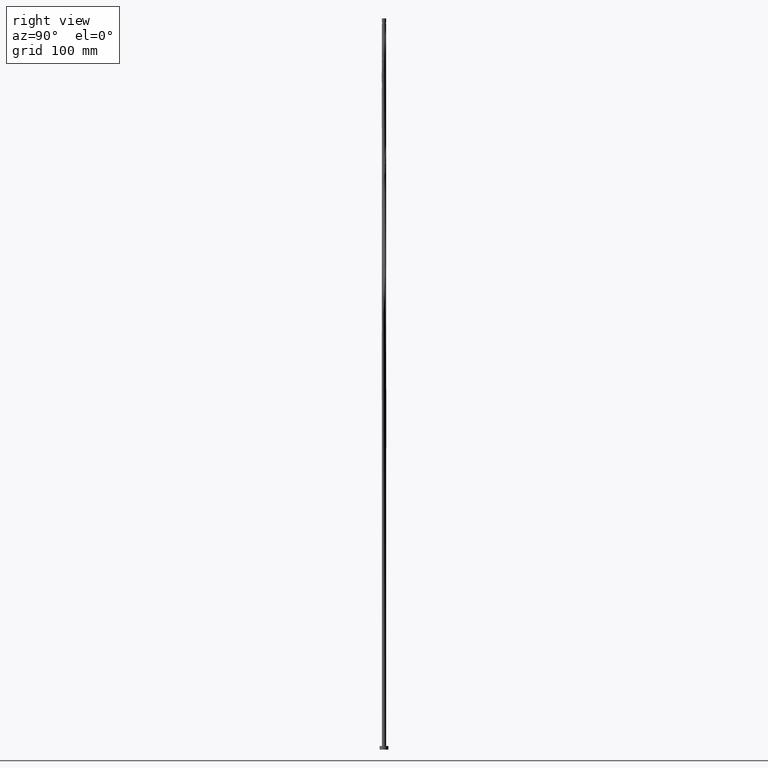
[diagram: clean part render]
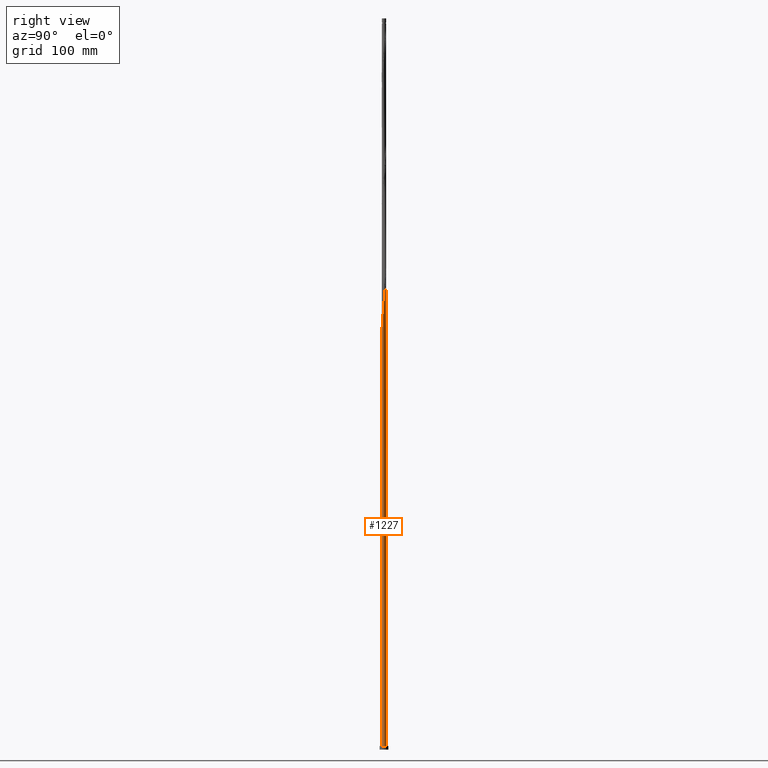
[diagram: same view with one face highlighted and labeled with its STEP entity id]
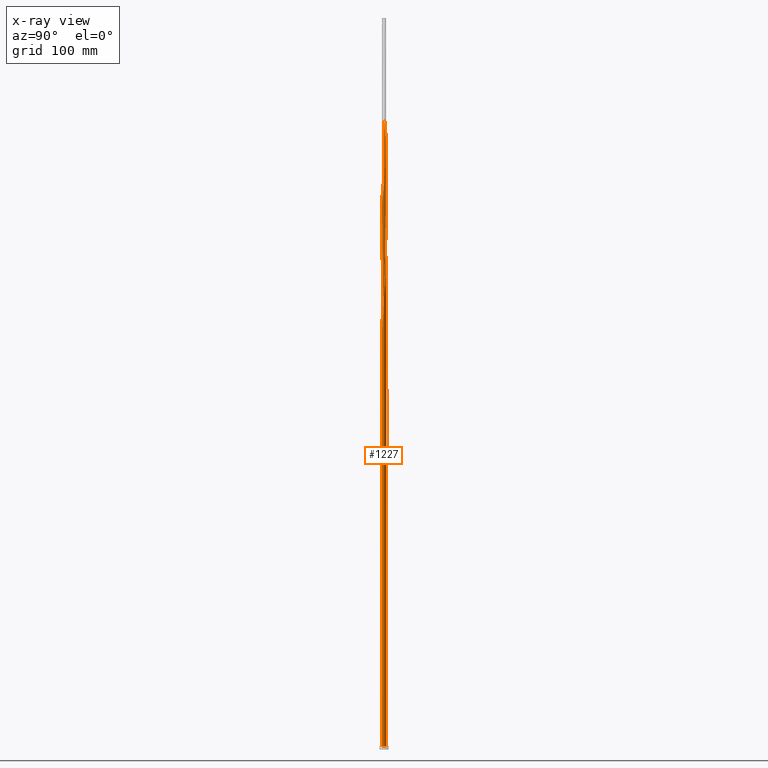
[diagram: x-ray of the same camera — body ghosted, the highlighted face saturated]
A machine part, right view. The second image highlights one B-rep face of the part: STEP entity #1227.
The next image is the same camera in x-ray: the body ghosted, the highlighted face saturated — about 0% of this face is hidden behind the body in this view.
In plain terms, the highlighted cylindrical surface (bore or boss wall) has radius 3 mm, axis along (-0, -0, -1).
Its self-contained STEP definition (entity closure, byte-faithful):
#12 = CARTESIAN_POINT ( 'NONE',  ( -3.000000000000007550, 0.1709212123392681859, 861.0584429387306500 ) ) ;
#28 = CARTESIAN_POINT ( 'NONE',  ( 2.729413328510887471, -1.245111594254566301, 767.8836096625230994 ) ) ;
#38 = CARTESIAN_POINT ( 'NONE',  ( -2.051489589161154203, 2.201621242057181682, 507.4669429958566980 ) ) ;
#39 = CARTESIAN_POINT ( 'NONE',  ( -1.476283534877595560, 2.611625341554438595, 834.5502763291899555 ) ) ;
#44 = CARTESIAN_POINT ( 'NONE',  ( -2.893015674258395453, -0.8283754803283612800, 536.6336096625232130 ) ) ;
#51 = CARTESIAN_POINT ( 'NONE',  ( 2.810413524882391378, 1.049559821619597155, 788.7169429958565843 ) ) ;
#56 = CARTESIAN_POINT ( 'NONE',  ( -2.986984325741610213, -0.3656094441996043387, 532.4669429958565843 ) ) ;
#82 = CARTESIAN_POINT ( 'NONE',  ( -0.8028078904657800496, 2.890588087397767403, 505.3836096625232699 ) ) ;
#92 = CARTESIAN_POINT ( 'NONE',  ( -2.027606598413804306, 2.211065689225176545, 517.8836096625233267 ) ) ;
#99 = CARTESIAN_POINT ( 'NONE',  ( -1.853591954770430927, 2.370641789289201107, 515.8002763291899555 ) ) ;
#103 = EDGE_CURVE ( 'NONE', #1804, #783, #2168, .T. ) ;
#105 = AXIS2_PLACEMENT_3D ( 'NONE', #2139, #532, #1901 ) ;
#106 = CARTESIAN_POINT ( 'NONE',  ( -2.348530274829836895, -1.866656248002755980, 547.0502763291899555 ) ) ;
#118 = CARTESIAN_POINT ( 'NONE',  ( 2.890588087397772288, -0.8028078904657826032, 605.3836096625233267 ) ) ;
#131 = CARTESIAN_POINT ( 'NONE',  ( 1.866656248002755536, -2.348530274829836895, 755.3836096625232130 ) ) ;
#144 = CARTESIAN_POINT ( 'NONE',  ( 0.3407363920470974916, 2.980586974261069777, 651.2169429958565843 ) ) ;
#158 = CARTESIAN_POINT ( 'NONE',  ( 0.3656094441996041722, -2.986984325741610213, 740.8002763291899555 ) ) ;
#167 = EDGE_CURVE ( 'NONE', #783, #1804, #2202, .T. ) ;
#168 = CARTESIAN_POINT ( 'NONE',  ( -3.007403509892437654, 0.1061591098335256667, 694.9669429958564706 ) ) ;
#179 = CARTESIAN_POINT ( 'NONE',  ( -2.890588087397772288, 0.8028078904657819370, 688.7169429958565843 ) ) ;
#189 = CARTESIAN_POINT ( 'NONE',  ( -2.051489589161154203, 2.201621242057181682, 840.8002763291900692 ) ) ;
#214 = CARTESIAN_POINT ( 'NONE',  ( -1.866656248002755980, 2.348530274829836895, 505.3836096625232699 ) ) ;
#215 = CARTESIAN_POINT ( 'NONE',  ( -2.890588087397772288, 0.8028078904657819370, 855.3836096625232130 ) ) ;
#224 = CARTESIAN_POINT ( 'NONE',  ( -2.729413328510888359, 1.245111594254565857, 517.8836096625232130 ) ) ;
#225 = CARTESIAN_POINT ( 'NONE',  ( -1.049559821619597599, 2.810413524882391378, 830.3836096625233267 ) ) ;
#228 = ORIENTED_EDGE ( 'NONE', *, *, #1818, .F. ) ;
#230 = CARTESIAN_POINT ( 'NONE',  ( -2.611625341554438595, -1.476283534877595560, 542.8836096625233267 ) ) ;
#235 = CARTESIAN_POINT ( 'NONE',  ( -0.5969924622639822820, 2.940000000000003499, 492.8836096625233267 ) ) ;
#240 = CARTESIAN_POINT ( 'NONE',  ( -2.201621242057181682, -2.051489589161154203, 549.1336096625232130 ) ) ;
#244 = CARTESIAN_POINT ( 'NONE',  ( -1.030302106670893725, 2.827405736165839123, 507.4669429958565843 ) ) ;
#256 = CARTESIAN_POINT ( 'NONE',  ( -2.201621242057175909, 2.051489589161151095, 519.9669429958566980 ) ) ;
#276 = LINE ( 'NONE', #1001, #1164 ) ;
#280 = CARTESIAN_POINT ( 'NONE',  ( 1.049559821619597377, -2.810413524882391378, 580.3836096625233267 ) ) ;
#294 = CARTESIAN_POINT ( 'NONE',  ( 0.5969924622639826151, -2.940000000000003055, 576.2169429958564706 ) ) ;
#306 = CARTESIAN_POINT ( 'NONE',  ( -2.495439307602490331, -1.681822906844356869, 711.6336096625234404 ) ) ;
#322 = CARTESIAN_POINT ( 'NONE',  ( 1.853591954770434480, 2.370641789289205992, 636.6336096625233267 ) ) ;
#326 = ORIENTED_EDGE ( 'NONE', *, *, #973, .T. ) ;
#335 = CARTESIAN_POINT ( 'NONE',  ( -0.1061591098335258054, -3.007403509892437654, 736.6336096625234404 ) ) ;
#347 = CARTESIAN_POINT ( 'NONE',  ( -2.953770438629701012, 0.5753136742606683729, 690.8002763291898418 ) ) ;
#357 = CARTESIAN_POINT ( 'NONE',  ( -2.980586974261069777, 0.3407363920470968810, 692.8836096625232130 ) ) ;
#369 = CARTESIAN_POINT ( 'NONE',  ( 2.727811375506387748, 1.270744162910832697, 790.8002763291899555 ) ) ;
#392 = CARTESIAN_POINT ( 'NONE',  ( -1.681822906844357313, 2.495439307602490331, 503.3002763291900692 ) ) ;
#393 = CARTESIAN_POINT ( 'NONE',  ( 1.853591954770434480, 2.370641789289205992, 803.3002763291899555 ) ) ;
#394 = CIRCLE ( 'NONE', #928, 3.000000000000000444 ) ;
#404 = CARTESIAN_POINT ( 'NONE',  ( 2.631420920855930934, -1.459921081838237766, 765.8002763291899555 ) ) ;
#409 = CARTESIAN_POINT ( 'NONE',  ( -0.5753136742606683729, -2.953770438629701012, 565.8002763291900692 ) ) ;
#413 = CARTESIAN_POINT ( 'NONE',  ( 2.827405736165844896, -1.030302106670895279, 769.9669429958566980 ) ) ;
#428 = CARTESIAN_POINT ( 'NONE',  ( -2.940000000000003055, -0.5969924622639829481, 534.5502763291899555 ) ) ;
#431 = CARTESIAN_POINT ( 'NONE',  ( -2.893015674258391012, 0.8283754803283606138, 532.4669429958566980 ) ) ;
#442 = CARTESIAN_POINT ( 'NONE',  ( -3.000000000000004441, -1.335890107967200386E-15, 529.2369981237420689 ) ) ;
#446 = CARTESIAN_POINT ( 'NONE',  ( 0.000000000000000000, 0.000000000000000000, 5.000000000000000000 ) ) ;
#456 = CARTESIAN_POINT ( 'NONE',  ( -3.000000000000000444, 0.06489293274191583472, 539.2895422245717327 ) ) ;
#460 = DIRECTION ( 'NONE',  ( 1.000000000000000000, 0.000000000000000000, 0.000000000000000000 ) ) ;
#463 = CARTESIAN_POINT ( 'NONE',  ( 0.5969924622639833922, 2.939999999999998614, 492.8836096625233267 ) ) ;
#469 = CARTESIAN_POINT ( 'NONE',  ( 2.827405736165844896, -1.030302106670895279, 603.3002763291898418 ) ) ;
#495 = CARTESIAN_POINT ( 'NONE',  ( 1.656756518304335790, 2.501031355072567575, 638.7169429958564706 ) ) ;
#511 = CARTESIAN_POINT ( 'NONE',  ( -2.729413328510888359, 1.245111594254565857, 684.5502763291898418 ) ) ;
#523 = CARTESIAN_POINT ( 'NONE',  ( 2.348530274829836895, 1.866656248002755758, 630.3836096625233267 ) ) ;
#532 = DIRECTION ( 'NONE',  ( -0.000000000000000000, -0.000000000000000000, -1.000000000000000000 ) ) ;
#535 = CARTESIAN_POINT ( 'NONE',  ( 0.8028078904657828252, 2.890588087397772288, 647.0502763291898418 ) ) ;
#546 = CARTESIAN_POINT ( 'NONE',  ( -1.049559821619597599, 2.810413524882391378, 497.0502763291898987 ) ) ;
#547 = CARTESIAN_POINT ( 'NONE',  ( 1.049559821619597377, -2.810413524882391378, 747.0502763291899555 ) ) ;
#573 = CARTESIAN_POINT ( 'NONE',  ( 1.245111594254566523, 2.729413328510887471, 809.5502763291898418 ) ) ;
#583 = CARTESIAN_POINT ( 'NONE',  ( 2.953770438629700124, -0.5753136742606698162, 774.1336096625233267 ) ) ;
#587 = CARTESIAN_POINT ( 'NONE',  ( -2.997193917817023934, -0.1297251671830393638, 530.3836096625234404 ) ) ;
#593 = CARTESIAN_POINT ( 'NONE',  ( -2.953770438629701012, 0.5753136742606683729, 857.4669429958565843 ) ) ;
#598 = CARTESIAN_POINT ( 'NONE',  ( 0.1297251671830391695, -2.997193917817023934, 572.0502763291897281 ) ) ;
#605 = CARTESIAN_POINT ( 'NONE',  ( 2.893015674258395009, 0.8283754803283621682, 786.6336096625230994 ) ) ;
#611 = CARTESIAN_POINT ( 'NONE',  ( -1.245111594254566301, -2.729413328510887471, 559.5502763291898418 ) ) ;
#628 = CARTESIAN_POINT ( 'NONE',  ( 0.000000000000000000, 0.000000000000000000, 5.000000000000000000 ) ) ;
#632 = ORIENTED_EDGE ( 'NONE', *, *, #856, .F. ) ;
#645 = EDGE_CURVE ( 'NONE', #647, #1201, #978, .T. ) ;
#647 = VERTEX_POINT ( 'NONE', #235 ) ;
#653 = CARTESIAN_POINT ( 'NONE',  ( 0.000000000000000000, 0.000000000000000000, 492.8836096625237815 ) ) ;
#657 = CARTESIAN_POINT ( 'NONE',  ( 2.631420920855930934, -1.459921081838237766, 599.1336096625230994 ) ) ;
#670 = CARTESIAN_POINT ( 'NONE',  ( 2.986984325741610657, 0.3656094441996026734, 615.8002763291899555 ) ) ;
#688 = CARTESIAN_POINT ( 'NONE',  ( 2.201621242057182126, 2.051489589161152871, 632.4669429958564706 ) ) ;
#691 = ORIENTED_EDGE ( 'NONE', *, *, #103, .T. ) ;
#701 = CARTESIAN_POINT ( 'NONE',  ( -2.501031355072568463, 1.656756518304335346, 680.3836096625230994 ) ) ;
#713 = CARTESIAN_POINT ( 'NONE',  ( 2.727811375506387748, 1.270744162910832697, 624.1336096625234404 ) ) ;
#719 = FACE_OUTER_BOUND ( 'NONE', #1230, .T. ) ;
#722 = CARTESIAN_POINT ( 'NONE',  ( -2.027606598413807415, -2.211065689225179653, 717.8836096625234404 ) ) ;
#734 = CARTESIAN_POINT ( 'NONE',  ( -1.656756518304335346, -2.501031355072567575, 722.0502763291899555 ) ) ;
#756 = CARTESIAN_POINT ( 'NONE',  ( 1.656756518304335790, 2.501031355072567575, 805.3836096625233267 ) ) ;
#767 = CARTESIAN_POINT ( 'NONE',  ( -3.000000000000004885, 1.686654549723951412E-15, 862.5703314570754401 ) ) ;
#777 = CARTESIAN_POINT ( 'NONE',  ( -2.827405736165844008, 1.030302106670896389, 519.9669429958566980 ) ) ;
#779 = CARTESIAN_POINT ( 'NONE',  ( -2.370641789289205548, 1.853591954770434702, 844.9669429958563569 ) ) ;
#783 = VERTEX_POINT ( 'NONE', #980 ) ;
#785 = CARTESIAN_POINT ( 'NONE',  ( -1.459921081838235990, -2.631420920855931822, 557.4669429958565843 ) ) ;
#792 = CARTESIAN_POINT ( 'NONE',  ( 2.986984325741610657, 0.3656094441996026734, 782.4669429958565843 ) ) ;
#798 = CARTESIAN_POINT ( 'NONE',  ( 1.866656248002755536, -2.348530274829836895, 588.7169429958565843 ) ) ;
#818 = DIRECTION ( 'NONE',  ( 0.000000000000000000, 0.000000000000000000, 1.000000000000000000 ) ) ;
#823 = CARTESIAN_POINT ( 'NONE',  ( -1.656756518304332237, 2.501031355072564910, 513.7169429958565843 ) ) ;
#835 = CARTESIAN_POINT ( 'NONE',  ( -1.656756518304335346, -2.501031355072567575, 555.3836096625233267 ) ) ;
#849 = CARTESIAN_POINT ( 'NONE',  ( 2.953770438629700124, -0.5753136742606698162, 607.4669429958564706 ) ) ;
#850 = DIRECTION ( 'NONE',  ( 0.000000000000000000, 0.000000000000000000, 1.000000000000000000 ) ) ;
#856 = EDGE_CURVE ( 'NONE', #869, #2288, #276, .T. ) ;
#863 = CARTESIAN_POINT ( 'NONE',  ( -2.611625341554438595, -1.476283534877595560, 709.5502763291898418 ) ) ;
#864 = AXIS2_PLACEMENT_3D ( 'NONE', #446, #850, #2276 ) ;
#869 = VERTEX_POINT ( 'NONE', #1149 ) ;
#879 = CARTESIAN_POINT ( 'NONE',  ( 2.611625341554438595, 1.476283534877595560, 626.2169429958566980 ) ) ;
#887 = CARTESIAN_POINT ( 'NONE',  ( -3.000000000000004885, -1.335890107967200386E-15, 529.2369981237420689 ) ) ;
#891 = CARTESIAN_POINT ( 'NONE',  ( 0.5969924622639826151, -2.940000000000003055, 742.8836096625232130 ) ) ;
#903 = CARTESIAN_POINT ( 'NONE',  ( 1.459921081838237766, 2.631420920855930490, 640.8002763291899555 ) ) ;
#913 = CARTESIAN_POINT ( 'NONE',  ( -0.5753136742606683729, -2.953770438629701012, 732.4669429958564706 ) ) ;
#918 = EDGE_CURVE ( 'NONE', #2288, #1759, #1453, .T. ) ;
#923 = CARTESIAN_POINT ( 'NONE',  ( -0.8283754803283615020, 2.893015674258395453, 494.9669429958565274 ) ) ;
#924 = CARTESIAN_POINT ( 'NONE',  ( -2.501031355072568463, 1.656756518304335346, 847.0502763291898418 ) ) ;
#928 = AXIS2_PLACEMENT_3D ( 'NONE', #653, #1367, #2082 ) ;
#950 = CARTESIAN_POINT ( 'NONE',  ( -1.866656248002755980, 2.348530274829836895, 838.7169429958565843 ) ) ;
#961 = CARTESIAN_POINT ( 'NONE',  ( -1.681822906844357313, 2.495439307602490331, 836.6336096625230994 ) ) ;
#965 = CARTESIAN_POINT ( 'NONE',  ( -1.853591954770434702, -2.370641789289205104, 553.3002763291899555 ) ) ;
#970 = CARTESIAN_POINT ( 'NONE',  ( -0.3656094441996024513, 2.986984325741610657, 824.1336096625232130 ) ) ;
#973 = EDGE_CURVE ( 'NONE', #647, #1759, #394, .T. ) ;
#975 = CARTESIAN_POINT ( 'NONE',  ( 1.681822906844356869, -2.495439307602491663, 586.6336096625233267 ) ) ;
#978 =( BOUNDED_CURVE ( )  B_SPLINE_CURVE ( 2, ( #2000, #923, #546, #2180, #1268, #392, #214, #38, #1657, #1481, #1833, #2189, #224, #777, #1310, #2023, #1886, #1013, #442 ),
 .UNSPECIFIED., .F., .T. ) 
 B_SPLINE_CURVE_WITH_KNOTS ( ( 3, 2, 2, 2, 2, 2, 2, 2, 2, 3 ),
 ( 0.000000000000000000, 0.006249999999999977796, 0.01249999999999995559, 0.01875000000000004441, 0.02500000000000002220, 0.03125000000000000000, 0.03749999999999997780, 0.04374999999999995559, 0.05000000000000004441, 0.05452835374107339178 ),
 .UNSPECIFIED. ) 
 CURVE ( )  GEOMETRIC_REPRESENTATION_ITEM ( )  RATIONAL_B_SPLINE_CURVE ( ( 0.9090909090910627155, 0.9062884852120877133, 0.9090909090910627155, 0.9062884852120877133, 0.9090909090910627155, 0.9062884852120877133, 0.9090909090910627155, 0.9062884852120877133, 0.9090909090910627155, 0.9062884852120877133, 0.9090909090910627155, 0.9062884852120877133, 0.9090909090910627155, 0.9062884852120877133, 0.9090909090910627155, 0.9062884852120877133, 0.9090909090910627155, 0.9070604504260340040, 0.9079722749904062251 ) ) 
 REPRESENTATION_ITEM ( '' )  );
#980 = CARTESIAN_POINT ( 'NONE',  ( 3.000000000000000444, 0.000000000000000000, 5.000000000000000000 ) ) ;
#1001 = CARTESIAN_POINT ( 'NONE',  ( -3.000000000000000444, 0.000000000000000000, 1000.000000000000000 ) ) ;
#1013 = CARTESIAN_POINT ( 'NONE',  ( -3.000000000000004441, 0.1709212123392916949, 527.7251096053969377 ) ) ;
#1018 = CARTESIAN_POINT ( 'NONE',  ( 2.211065689225179653, -2.027606598413807415, 592.8836096625234404 ) ) ;
#1029 = CARTESIAN_POINT ( 'NONE',  ( 2.501031355072568463, -1.656756518304335568, 597.0502763291898418 ) ) ;
#1032 = ORIENTED_EDGE ( 'NONE', *, *, #167, .T. ) ;
#1040 = CARTESIAN_POINT ( 'NONE',  ( -2.810413524882391378, -1.049559821619597599, 705.3836096625232130 ) ) ;
#1056 = CARTESIAN_POINT ( 'NONE',  ( -2.727811375506387304, -1.270744162910834252, 707.4669429958566980 ) ) ;
#1057 =( BOUNDED_CURVE ( )  B_SPLINE_CURVE ( 2, ( #1182, #2216, #587, #56, #428, #44, #1305, #2085, #230, #1508, #106, #240, #2204, #965, #835, #785, #611, #1496, #1327, #409, #1890, #2041, #598, #1317, #294, #1728, #280, #2029, #1849, #975, #798, #1543, #1018, #2262, #1029, #657, #1373, #469, #118, #849, #1555, #2275, #2097, #670, #1919, #1385, #1213, #713, #879, #1083, #523, #688, #1755, #322, #495, #903, #2133, #1571, #535, #1598, #144, #1968, #1608, #1959, #1587, #2314, #1447, #1250, #1269, #2122, #1787, #1426, #2303, #1779, #701, #1935, #511, #1398, #179, #347, #357, #168, #2286, #1770, #1225, #1260, #1040, #1056, #863, #306, #1414, #2323, #722, #1438, #734, #1091, #2143, #2110, #1238, #913, #1948, #335, #1071, #158, #891, #1617, #547, #2333, #2153, #1741, #131, #1470, #1502, #1639, #2211, #404, #28, #413, #1129, #583, #2181, #1099, #1301, #792, #2001, #605, #51, #369, #1482, #1292, #1845, #1649, #1988, #393, #756, #2024, #573, #2199, #2014, #1118, #1658, #2190, #1976, #970, #1834, #1140, #225, #1799, #39, #961, #950, #189, #1109, #779, #924, #1630, #1492, #2165, #215, #593, #1823, #12, #767 ),
 .UNSPECIFIED., .F., .T. ) 
 B_SPLINE_CURVE_WITH_KNOTS ( ( 3, 2, 2, 2, 2, 2, 2, 2, 2, 2, 2, 2, 2, 2, 2, 2, 2, 2, 2, 2, 2, 2, 2, 2, 2, 2, 2, 2, 2, 2, 2, 2, 2, 2, 2, 2, 2, 2, 2, 2, 2, 2, 2, 2, 2, 2, 2, 2, 2, 2, 2, 2, 2, 2, 2, 2, 2, 2, 2, 2, 2, 2, 2, 2, 2, 2, 2, 2, 2, 2, 2, 2, 2, 2, 2, 2, 2, 2, 2, 2, 2, 3 ),
 ( 0.05452835374107338484, 0.05625000000000002220, 0.06250000000000000000, 0.06874999999999997780, 0.07499999999999995559, 0.08125000000000004441, 0.08750000000000002220, 0.09375000000000000000, 0.09999999999999997780, 0.1062499999999999556, 0.1125000000000000444, 0.1187500000000000222, 0.1250000000000000000, 0.1312499999999999778, 0.1374999999999999556, 0.1437500000000000444, 0.1500000000000000222, 0.1562500000000000000, 0.1624999999999999778, 0.1687499999999999556, 0.1750000000000000444, 0.1812500000000000222, 0.1875000000000000000, 0.1937499999999999778, 0.1999999999999999556, 0.2062500000000000444, 0.2125000000000000222, 0.2187500000000000000, 0.2249999999999999778, 0.2312499999999999556, 0.2375000000000000444, 0.2437500000000000222, 0.2500000000000000000, 0.2562499999999999778, 0.2624999999999999556, 0.2687500000000000444, 0.2750000000000000222, 0.2812500000000000000, 0.2874999999999999778, 0.2937499999999999556, 0.3000000000000000444, 0.3062500000000000222, 0.3125000000000000000, 0.3187499999999999778, 0.3249999999999999556, 0.3312500000000000444, 0.3375000000000000222, 0.3437500000000000000, 0.3499999999999999778, 0.3562499999999999556, 0.3625000000000000444, 0.3687500000000000222, 0.3750000000000000000, 0.3812499999999999778, 0.3874999999999999556, 0.3937500000000000444, 0.4000000000000000222, 0.4062500000000000000, 0.4124999999999999778, 0.4187499999999999556, 0.4250000000000000444, 0.4312500000000000222, 0.4375000000000000000, 0.4437499999999999778, 0.4499999999999999556, 0.4562500000000000444, 0.4625000000000000222, 0.4687500000000000000, 0.4749999999999999778, 0.4812499999999999556, 0.4875000000000000444, 0.4937500000000000222, 0.5000000000000000000, 0.5062499999999999778, 0.5124999999999999556, 0.5187500000000000444, 0.5250000000000000222, 0.5312500000000000000, 0.5374999999999999778, 0.5437499999999999556, 0.5500000000000000444, 0.5545283537410740093 ),
 .UNSPECIFIED. ) 
 CURVE ( )  GEOMETRIC_REPRESENTATION_ITEM ( )  RATIONAL_B_SPLINE_CURVE ( ( 0.9079722749904062251, 0.9083189438771165358, 0.9090909090910627155, 0.9062884852120877133, 0.9090909090910627155, 0.9062884852120877133, 0.9090909090910627155, 0.9062884852120877133, 0.9090909090910627155, 0.9062884852120877133, 0.9090909090910627155, 0.9062884852120877133, 0.9090909090910627155, 0.9062884852120877133, 0.9090909090910627155, 0.9062884852120877133, 0.9090909090910627155, 0.9062884852120877133, 0.9090909090910627155, 0.9062884852120877133, 0.9090909090910627155, 0.9062884852120877133, 0.9090909090910627155, 0.9062884852120877133, 0.9090909090910627155, 0.9062884852120877133, 0.9090909090910627155, 0.9062884852120877133, 0.9090909090910627155, 0.9062884852120877133, 0.9090909090910627155, 0.9062884852120877133, 0.9090909090910627155, 0.9062884852120877133, 0.9090909090910627155, 0.9062884852120877133, 0.9090909090910627155, 0.9062884852120877133, 0.9090909090910627155, 0.9062884852120877133, 0.9090909090910627155, 0.9062884852120877133, 0.9090909090910627155, 0.9062884852120877133, 0.9090909090910627155, 0.9062884852120877133, 0.9090909090910627155, 0.9062884852120877133, 0.9090909090910627155, 0.9062884852120877133, 0.9090909090910627155, 0.9062884852120877133, 0.9090909090910627155, 0.9062884852120877133, 0.9090909090910627155, 0.9062884852120877133, 0.9090909090910627155, 0.9062884852120877133, 0.9090909090910627155, 0.9062884852120877133, 0.9090909090910627155, 0.9062884852120877133, 0.9090909090910627155, 0.9062884852120877133, 0.9090909090910627155, 0.9062884852120877133, 0.9090909090910627155, 0.9062884852120877133, 0.9090909090910627155, 0.9062884852120877133, 0.9090909090910627155, 0.9062884852120877133, 0.9090909090910627155, 0.9062884852120877133, 0.9090909090910627155, 0.9062884852120877133, 0.9090909090910627155, 0.9062884852120877133, 0.9090909090910627155, 0.9062884852120877133, 0.9090909090910627155, 0.9062884852120877133, 0.9090909090910627155, 0.9062884852120877133, 0.9090909090910627155, 0.9062884852120877133, 0.9090909090910627155, 0.9062884852120877133, 0.9090909090910627155, 0.9062884852120877133, 0.9090909090910627155, 0.9062884852120877133, 0.9090909090910627155, 0.9062884852120877133, 0.9090909090910627155, 0.9062884852120877133, 0.9090909090910627155, 0.9062884852120877133, 0.9090909090910627155, 0.9062884852120877133, 0.9090909090910627155, 0.9062884852120877133, 0.9090909090910627155, 0.9062884852120877133, 0.9090909090910627155, 0.9062884852120877133, 0.9090909090910627155, 0.9062884852120877133, 0.9090909090910627155, 0.9062884852120877133, 0.9090909090910627155, 0.9062884852120877133, 0.9090909090910627155, 0.9062884852120877133, 0.9090909090910627155, 0.9062884852120877133, 0.9090909090910627155, 0.9062884852120877133, 0.9090909090910627155, 0.9062884852120877133, 0.9090909090910627155, 0.9062884852120877133, 0.9090909090910627155, 0.9062884852120877133, 0.9090909090910627155, 0.9062884852120877133, 0.9090909090910627155, 0.9062884852120877133, 0.9090909090910627155, 0.9062884852120877133, 0.9090909090910627155, 0.9062884852120877133, 0.9090909090910627155, 0.9062884852120877133, 0.9090909090910627155, 0.9062884852120877133, 0.9090909090910627155, 0.9062884852120877133, 0.9090909090910627155, 0.9062884852120877133, 0.9090909090910627155, 0.9062884852120877133, 0.9090909090910627155, 0.9062884852120877133, 0.9090909090910627155, 0.9062884852120877133, 0.9090909090910627155, 0.9062884852120877133, 0.9090909090910627155, 0.9062884852120877133, 0.9090909090910627155, 0.9062884852120877133, 0.9090909090910627155, 0.9062884852120877133, 0.9090909090910627155, 0.9062884852120877133, 0.9090909090910627155, 0.9062884852120877133, 0.9090909090910627155, 0.9062884852120877133, 0.9090909090910627155, 0.9070604504260337819, 0.9079722749904064472 ) ) 
 REPRESENTATION_ITEM ( '' )  );
#1071 = CARTESIAN_POINT ( 'NONE',  ( 0.1297251671830391695, -2.997193917817023934, 738.7169429958568116 ) ) ;
#1083 = CARTESIAN_POINT ( 'NONE',  ( 2.495439307602490331, 1.681822906844357757, 628.3002763291901829 ) ) ;
#1091 = CARTESIAN_POINT ( 'NONE',  ( -1.459921081838235990, -2.631420920855931822, 724.1336096625229857 ) ) ;
#1099 = CARTESIAN_POINT ( 'NONE',  ( 3.007403509892438542, -0.1061591098335247091, 778.3002763291900692 ) ) ;
#1109 = CARTESIAN_POINT ( 'NONE',  ( -2.211065689225179653, 2.027606598413807415, 842.8836096625234404 ) ) ;
#1118 = CARTESIAN_POINT ( 'NONE',  ( 0.5753136742606699272, 2.953770438629700124, 815.8002763291897281 ) ) ;
#1129 = CARTESIAN_POINT ( 'NONE',  ( 2.890588087397772288, -0.8028078904657826032, 772.0502763291898418 ) ) ;
#1140 = CARTESIAN_POINT ( 'NONE',  ( -0.8283754803283615020, 2.893015674258395453, 828.3002763291899555 ) ) ;
#1149 = CARTESIAN_POINT ( 'NONE',  ( -3.000000000000004885, 1.686654549723951412E-15, 862.5703314570754401 ) ) ;
#1164 = VECTOR ( 'NONE', #1688, 1000.000000000000000 ) ;
#1182 = CARTESIAN_POINT ( 'NONE',  ( -3.000000000000004441, -1.335890107967200386E-15, 529.2369981237420689 ) ) ;
#1195 = CARTESIAN_POINT ( 'NONE',  ( -0.5753136742606667076, 2.953770438629696127, 503.3002763291900692 ) ) ;
#1201 = VERTEX_POINT ( 'NONE', #887 ) ;
#1213 = CARTESIAN_POINT ( 'NONE',  ( 2.810413524882391378, 1.049559821619597155, 622.0502763291899555 ) ) ;
#1225 = CARTESIAN_POINT ( 'NONE',  ( -2.940000000000003055, -0.5969924622639829481, 701.2169429958566980 ) ) ;
#1227 = ADVANCED_FACE ( 'NONE', ( #719 ), #1433, .T. ) ;
#1230 = EDGE_LOOP ( 'NONE', ( #632, #2224, #1962, #691, #1032, #228, #1936, #326, #1536 ) ) ;
#1238 = CARTESIAN_POINT ( 'NONE',  ( -0.8028078904657822701, -2.890588087397772288, 730.3836096625232130 ) ) ;
#1250 = CARTESIAN_POINT ( 'NONE',  ( -1.270744162910834252, 2.727811375506386860, 665.8002763291899555 ) ) ;
#1260 = CARTESIAN_POINT ( 'NONE',  ( -2.893015674258395453, -0.8283754803283612800, 703.3002763291899555 ) ) ;
#1268 = CARTESIAN_POINT ( 'NONE',  ( -1.476283534877595560, 2.611625341554438595, 501.2169429958565274 ) ) ;
#1269 = CARTESIAN_POINT ( 'NONE',  ( -1.476283534877595560, 2.611625341554438595, 667.8836096625232130 ) ) ;
#1281 = CARTESIAN_POINT ( 'NONE',  ( -3.000000000000000444, 2.216532748973529108E-15, 539.8635545346380695 ) ) ;
#1292 = CARTESIAN_POINT ( 'NONE',  ( 2.495439307602490331, 1.681822906844357757, 794.9669429958564706 ) ) ;
#1301 = CARTESIAN_POINT ( 'NONE',  ( 2.997193917817023934, 0.1297251671830390307, 780.3836096625232130 ) ) ;
#1305 = CARTESIAN_POINT ( 'NONE',  ( -2.810413524882391378, -1.049559821619597599, 538.7169429958565843 ) ) ;
#1310 = CARTESIAN_POINT ( 'NONE',  ( -2.890588087397772288, 0.8028078904657819370, 522.0502763291898418 ) ) ;
#1317 = CARTESIAN_POINT ( 'NONE',  ( 0.3656094441996041722, -2.986984325741610213, 574.1336096625233267 ) ) ;
#1321 = CARTESIAN_POINT ( 'NONE',  ( -2.611625341554433710, 1.476283534877594228, 526.2169429958565843 ) ) ;
#1327 = CARTESIAN_POINT ( 'NONE',  ( -0.8028078904657822701, -2.890588087397772288, 563.7169429958563569 ) ) ;
#1331 = CARTESIAN_POINT ( 'NONE',  ( -2.348530274829830677, 1.866656248002753093, 522.0502763291899555 ) ) ;
#1352 = CARTESIAN_POINT ( 'NONE',  ( 0.5969924622639833922, 2.939999999999998614, 492.8836096625233267 ) ) ;
#1367 = DIRECTION ( 'NONE',  ( -4.108650548026104461E-29, -1.387778780781446938E-13, -1.000000000000000000 ) ) ;
#1373 = CARTESIAN_POINT ( 'NONE',  ( 2.729413328510887471, -1.245111594254566301, 601.2169429958565843 ) ) ;
#1385 = CARTESIAN_POINT ( 'NONE',  ( 2.893015674258395009, 0.8283754803283621682, 619.9669429958566980 ) ) ;
#1398 = CARTESIAN_POINT ( 'NONE',  ( -2.827405736165844008, 1.030302106670896389, 686.6336096625235541 ) ) ;
#1414 = CARTESIAN_POINT ( 'NONE',  ( -2.348530274829836895, -1.866656248002755980, 713.7169429958568116 ) ) ;
#1426 = CARTESIAN_POINT ( 'NONE',  ( -2.051489589161154203, 2.201621242057181682, 674.1336096625232130 ) ) ;
#1433 = CYLINDRICAL_SURFACE ( 'NONE', #105, 3.000000000000000444 ) ;
#1438 = CARTESIAN_POINT ( 'NONE',  ( -1.853591954770434702, -2.370641789289205104, 719.9669429958565843 ) ) ;
#1447 = CARTESIAN_POINT ( 'NONE',  ( -1.049559821619597599, 2.810413524882391378, 663.7169429958566980 ) ) ;
#1453 =( BOUNDED_CURVE ( )  B_SPLINE_CURVE ( 2, ( #2210, #456, #1520, #1676, #1853, #431, #1864, #1699, #1321, #2068, #1331, #256, #92, #99, #823, #1530, #2245, #244, #82, #1195, #2232, #1539, #2057, #2258, #1352 ),
 .UNSPECIFIED., .F., .T. ) 
 B_SPLINE_CURVE_WITH_KNOTS ( ( 3, 2, 2, 2, 2, 2, 2, 2, 2, 2, 2, 2, 3 ),
 ( 0.9295283537410733432, 0.9312500000000000222, 0.9375000000000000000, 0.9437499999999999778, 0.9499999999999999556, 0.9562500000000000444, 0.9625000000000000222, 0.9687500000000000000, 0.9749999999999999778, 0.9812499999999999556, 0.9875000000000000444, 0.9937500000000000222, 1.000000000000000000 ),
 .UNSPECIFIED. ) 
 CURVE ( )  GEOMETRIC_REPRESENTATION_ITEM ( )  RATIONAL_B_SPLINE_CURVE ( ( 0.9079722749903987866, 0.9083189438771090973, 0.9090909090910553880, 0.9062884852120804968, 0.9090909090910553880, 0.9062884852120804968, 0.9090909090910553880, 0.9062884852120804968, 0.9090909090910553880, 0.9062884852120804968, 0.9090909090910553880, 0.9062884852120804968, 0.9090909090910553880, 0.9062884852120804968, 0.9090909090910553880, 0.9062884852120804968, 0.9090909090910553880, 0.9062884852120804968, 0.9090909090910553880, 0.9062884852120804968, 0.9090909090910553880, 0.9062884852120804968, 0.9090909090910553880, 0.9062884852120804968, 0.9090909090910553880 ) ) 
 REPRESENTATION_ITEM ( '' )  );
#1470 = CARTESIAN_POINT ( 'NONE',  ( 2.051489589161153759, -2.201621242057181682, 757.4669429958565843 ) ) ;
#1481 = CARTESIAN_POINT ( 'NONE',  ( -2.370641789289205548, 1.853591954770434702, 511.6336096625233836 ) ) ;
#1482 = CARTESIAN_POINT ( 'NONE',  ( 2.611625341554438595, 1.476283534877595560, 792.8836096625233267 ) ) ;
#1492 = CARTESIAN_POINT ( 'NONE',  ( -2.729413328510888359, 1.245111594254565857, 851.2169429958565843 ) ) ;
#1496 = CARTESIAN_POINT ( 'NONE',  ( -1.030302106670896389, -2.827405736165844008, 561.6336096625235541 ) ) ;
#1502 = CARTESIAN_POINT ( 'NONE',  ( 2.211065689225179653, -2.027606598413807415, 759.5502763291899555 ) ) ;
#1508 = CARTESIAN_POINT ( 'NONE',  ( -2.495439307602490331, -1.681822906844356869, 544.9669429958564706 ) ) ;
#1520 = CARTESIAN_POINT ( 'NONE',  ( -2.997193917817018605, 0.1297251671830399744, 538.7169429958566980 ) ) ;
#1530 = CARTESIAN_POINT ( 'NONE',  ( -1.459921081838233103, 2.631420920855927381, 511.6336096625232699 ) ) ;
#1536 = ORIENTED_EDGE ( 'NONE', *, *, #918, .F. ) ;
#1539 = CARTESIAN_POINT ( 'NONE',  ( -0.1061591098335246675, 3.007403509892433213, 499.1336096625233267 ) ) ;
#1543 = CARTESIAN_POINT ( 'NONE',  ( 2.051489589161153759, -2.201621242057181682, 590.8002763291898418 ) ) ;
#1555 = CARTESIAN_POINT ( 'NONE',  ( 2.980586974261069777, -0.3407363920470972141, 609.5502763291899555 ) ) ;
#1562 = DIRECTION ( 'NONE',  ( -0.000000000000000000, -0.000000000000000000, -1.000000000000000000 ) ) ;
#1571 = CARTESIAN_POINT ( 'NONE',  ( 1.030302106670895723, 2.827405736165844008, 644.9669429958566980 ) ) ;
#1587 = CARTESIAN_POINT ( 'NONE',  ( -0.5969924622639821710, 2.940000000000003055, 659.5502763291899555 ) ) ;
#1593 = LINE ( 'NONE', #1733, #2061 ) ;
#1598 = CARTESIAN_POINT ( 'NONE',  ( 0.5753136742606699272, 2.953770438629700124, 649.1336096625233267 ) ) ;
#1608 = CARTESIAN_POINT ( 'NONE',  ( -0.1297251671830388642, 2.997193917817023934, 655.3836096625230994 ) ) ;
#1617 = CARTESIAN_POINT ( 'NONE',  ( 0.8283754803283612800, -2.893015674258395453, 744.9669429958565843 ) ) ;
#1630 = CARTESIAN_POINT ( 'NONE',  ( -2.631420920855931822, 1.459921081838235990, 849.1336096625230994 ) ) ;
#1639 = CARTESIAN_POINT ( 'NONE',  ( 2.370641789289205104, -1.853591954770435146, 761.6336096625232130 ) ) ;
#1649 = CARTESIAN_POINT ( 'NONE',  ( 2.201621242057182126, 2.051489589161152871, 799.1336096625233267 ) ) ;
#1657 = CARTESIAN_POINT ( 'NONE',  ( -2.211065689225179653, 2.027606598413807415, 509.5502763291897850 ) ) ;
#1658 = CARTESIAN_POINT ( 'NONE',  ( 0.3407363920470974916, 2.980586974261069777, 817.8836096625232130 ) ) ;
#1676 = CARTESIAN_POINT ( 'NONE',  ( -2.986984325741604884, 0.3656094441996045608, 536.6336096625233267 ) ) ;
#1688 = DIRECTION ( 'NONE',  ( -0.000000000000000000, -0.000000000000000000, -1.000000000000000000 ) ) ;
#1699 = CARTESIAN_POINT ( 'NONE',  ( -2.727811375506381530, 1.270744162910833142, 528.3002763291899555 ) ) ;
#1728 = CARTESIAN_POINT ( 'NONE',  ( 0.8283754803283612800, -2.893015674258395453, 578.3002763291898418 ) ) ;
#1733 = CARTESIAN_POINT ( 'NONE',  ( -3.000000000000000444, 0.000000000000000000, 1000.000000000000000 ) ) ;
#1741 = CARTESIAN_POINT ( 'NONE',  ( 1.681822906844356869, -2.495439307602491663, 753.3002763291897281 ) ) ;
#1755 = CARTESIAN_POINT ( 'NONE',  ( 2.027606598413807859, 2.211065689225178765, 634.5502763291899555 ) ) ;
#1759 = VERTEX_POINT ( 'NONE', #463 ) ;
#1770 = CARTESIAN_POINT ( 'NONE',  ( -2.986984325741610213, -0.3656094441996043387, 699.1336096625233267 ) ) ;
#1779 = CARTESIAN_POINT ( 'NONE',  ( -2.370641789289205548, 1.853591954770434702, 678.3002763291899555 ) ) ;
#1787 = CARTESIAN_POINT ( 'NONE',  ( -1.866656248002755980, 2.348530274829836895, 672.0502763291899555 ) ) ;
#1799 = CARTESIAN_POINT ( 'NONE',  ( -1.270744162910834252, 2.727811375506386860, 832.4669429958565843 ) ) ;
#1804 = VERTEX_POINT ( 'NONE', #2089 ) ;
#1818 = EDGE_CURVE ( 'NONE', #1201, #1804, #1593, .T. ) ;
#1823 = CARTESIAN_POINT ( 'NONE',  ( -2.980586974261069777, 0.3407363920470968810, 859.5502763291899555 ) ) ;
#1833 = CARTESIAN_POINT ( 'NONE',  ( -2.501031355072568463, 1.656756518304335346, 513.7169429958564706 ) ) ;
#1834 = CARTESIAN_POINT ( 'NONE',  ( -0.5969924622639821710, 2.940000000000003055, 826.2169429958566980 ) ) ;
#1844 = AXIS2_PLACEMENT_3D ( 'NONE', #628, #818, #460 ) ;
#1845 = CARTESIAN_POINT ( 'NONE',  ( 2.348530274829836895, 1.866656248002755758, 797.0502763291899555 ) ) ;
#1849 = CARTESIAN_POINT ( 'NONE',  ( 1.476283534877595560, -2.611625341554438595, 584.5502763291896144 ) ) ;
#1853 = CARTESIAN_POINT ( 'NONE',  ( -2.939999999999998614, 0.5969924622639826151, 534.5502763291901829 ) ) ;
#1864 = CARTESIAN_POINT ( 'NONE',  ( -2.810413524882386493, 1.049559821619596711, 530.3836096625234404 ) ) ;
#1886 = CARTESIAN_POINT ( 'NONE',  ( -2.980586974261069777, 0.3407363920470968810, 526.2169429958565843 ) ) ;
#1890 = CARTESIAN_POINT ( 'NONE',  ( -0.3407363920470969920, -2.980586974261069777, 567.8836096625232130 ) ) ;
#1901 = DIRECTION ( 'NONE',  ( -1.000000000000000000, 0.000000000000000000, 0.000000000000000000 ) ) ;
#1919 = CARTESIAN_POINT ( 'NONE',  ( 2.940000000000003055, 0.5969924622639823930, 617.8836096625235541 ) ) ;
#1935 = CARTESIAN_POINT ( 'NONE',  ( -2.631420920855931822, 1.459921081838235990, 682.4669429958565843 ) ) ;
#1936 = ORIENTED_EDGE ( 'NONE', *, *, #645, .F. ) ;
#1948 = CARTESIAN_POINT ( 'NONE',  ( -0.3407363920470969920, -2.980586974261069777, 734.5502763291899555 ) ) ;
#1959 = CARTESIAN_POINT ( 'NONE',  ( -0.3656094441996024513, 2.986984325741610657, 657.4669429958565843 ) ) ;
#1962 = ORIENTED_EDGE ( 'NONE', *, *, #1818, .T. ) ;
#1968 = CARTESIAN_POINT ( 'NONE',  ( 0.1061591098335248340, 3.007403509892438542, 653.3002763291898418 ) ) ;
#1976 = CARTESIAN_POINT ( 'NONE',  ( -0.1297251671830388642, 2.997193917817023934, 822.0502763291899555 ) ) ;
#1988 = CARTESIAN_POINT ( 'NONE',  ( 2.027606598413807859, 2.211065689225178765, 801.2169429958565843 ) ) ;
#2000 = CARTESIAN_POINT ( 'NONE',  ( -0.5969924622639822820, 2.940000000000003499, 492.8836096625232699 ) ) ;
#2001 = CARTESIAN_POINT ( 'NONE',  ( 2.940000000000003055, 0.5969924622639823930, 784.5502763291899555 ) ) ;
#2014 = CARTESIAN_POINT ( 'NONE',  ( 0.8028078904657828252, 2.890588087397772288, 813.7169429958562432 ) ) ;
#2023 = CARTESIAN_POINT ( 'NONE',  ( -2.953770438629701012, 0.5753136742606683729, 524.1336096625233267 ) ) ;
#2024 = CARTESIAN_POINT ( 'NONE',  ( 1.459921081838237766, 2.631420920855930490, 807.4669429958565843 ) ) ;
#2029 = CARTESIAN_POINT ( 'NONE',  ( 1.270744162910834030, -2.727811375506387304, 582.4669429958566980 ) ) ;
#2041 = CARTESIAN_POINT ( 'NONE',  ( -0.1061591098335258054, -3.007403509892437654, 569.9669429958564706 ) ) ;
#2057 = CARTESIAN_POINT ( 'NONE',  ( 0.1297251671830398079, 2.997193917817018605, 497.0502763291899555 ) ) ;
#2061 = VECTOR ( 'NONE', #1562, 1000.000000000000000 ) ;
#2068 = CARTESIAN_POINT ( 'NONE',  ( -2.495439307602485890, 1.681822906844355092, 524.1336096625233267 ) ) ;
#2082 = DIRECTION ( 'NONE',  ( 0.000000000000000000, 1.000000000000000000, -1.480297366166875051E-13 ) ) ;
#2085 = CARTESIAN_POINT ( 'NONE',  ( -2.727811375506387304, -1.270744162910834252, 540.8002763291899555 ) ) ;
#2089 = CARTESIAN_POINT ( 'NONE',  ( -3.000000000000000444, 0.000000000000000000, 5.000000000000000000 ) ) ;
#2097 = CARTESIAN_POINT ( 'NONE',  ( 2.997193917817023934, 0.1297251671830390307, 613.7169429958568116 ) ) ;
#2110 = CARTESIAN_POINT ( 'NONE',  ( -1.030302106670896389, -2.827405736165844008, 728.3002763291899555 ) ) ;
#2122 = CARTESIAN_POINT ( 'NONE',  ( -1.681822906844357313, 2.495439307602490331, 669.9669429958564706 ) ) ;
#2133 = CARTESIAN_POINT ( 'NONE',  ( 1.245111594254566523, 2.729413328510887471, 642.8836096625230994 ) ) ;
#2139 = CARTESIAN_POINT ( 'NONE',  ( 0.000000000000000000, 0.000000000000000000, 1000.000000000000000 ) ) ;
#2143 = CARTESIAN_POINT ( 'NONE',  ( -1.245111594254566301, -2.729413328510887471, 726.2169429958568116 ) ) ;
#2153 = CARTESIAN_POINT ( 'NONE',  ( 1.476283534877595560, -2.611625341554438595, 751.2169429958563569 ) ) ;
#2165 = CARTESIAN_POINT ( 'NONE',  ( -2.827405736165844008, 1.030302106670896389, 853.3002763291899555 ) ) ;
#2168 = CIRCLE ( 'NONE', #864, 3.000000000000000444 ) ;
#2180 = CARTESIAN_POINT ( 'NONE',  ( -1.270744162910834252, 2.727811375506386860, 499.1336096625232130 ) ) ;
#2181 = CARTESIAN_POINT ( 'NONE',  ( 2.980586974261069777, -0.3407363920470972141, 776.2169429958564706 ) ) ;
#2189 = CARTESIAN_POINT ( 'NONE',  ( -2.631420920855931822, 1.459921081838235990, 515.8002763291899555 ) ) ;
#2190 = CARTESIAN_POINT ( 'NONE',  ( 0.1061591098335248340, 3.007403509892438542, 819.9669429958565843 ) ) ;
#2199 = CARTESIAN_POINT ( 'NONE',  ( 1.030302106670895723, 2.827405736165844008, 811.6336096625232130 ) ) ;
#2202 = CIRCLE ( 'NONE', #1844, 3.000000000000000444 ) ;
#2204 = CARTESIAN_POINT ( 'NONE',  ( -2.027606598413807415, -2.211065689225179653, 551.2169429958566980 ) ) ;
#2210 = CARTESIAN_POINT ( 'NONE',  ( -3.000000000000000444, 2.216532748973529108E-15, 539.8635545346380695 ) ) ;
#2211 = CARTESIAN_POINT ( 'NONE',  ( 2.501031355072568463, -1.656756518304335568, 763.7169429958563569 ) ) ;
#2216 = CARTESIAN_POINT ( 'NONE',  ( -3.000000000000004441, -0.06489293274191665351, 529.8110104338082920 ) ) ;
#2219 = EDGE_CURVE ( 'NONE', #1201, #869, #1057, .T. ) ;
#2224 = ORIENTED_EDGE ( 'NONE', *, *, #2219, .F. ) ;
#2232 = CARTESIAN_POINT ( 'NONE',  ( -0.3407363920470956042, 2.980586974261064892, 501.2169429958566411 ) ) ;
#2245 = CARTESIAN_POINT ( 'NONE',  ( -1.245111594254563414, 2.729413328510884362, 509.5502763291899555 ) ) ;
#2258 = CARTESIAN_POINT ( 'NONE',  ( 0.3656094441996043387, 2.986984325741604884, 494.9669429958566411 ) ) ;
#2262 = CARTESIAN_POINT ( 'NONE',  ( 2.370641789289205104, -1.853591954770435146, 594.9669429958564706 ) ) ;
#2275 = CARTESIAN_POINT ( 'NONE',  ( 3.007403509892438542, -0.1061591098335247091, 611.6336096625232130 ) ) ;
#2276 = DIRECTION ( 'NONE',  ( 1.000000000000000000, 0.000000000000000000, 0.000000000000000000 ) ) ;
#2286 = CARTESIAN_POINT ( 'NONE',  ( -2.997193917817023934, -0.1297251671830393638, 697.0502763291898418 ) ) ;
#2288 = VERTEX_POINT ( 'NONE', #1281 ) ;
#2303 = CARTESIAN_POINT ( 'NONE',  ( -2.211065689225179653, 2.027606598413807415, 676.2169429958565843 ) ) ;
#2314 = CARTESIAN_POINT ( 'NONE',  ( -0.8283754803283615020, 2.893015674258395453, 661.6336096625232130 ) ) ;
#2323 = CARTESIAN_POINT ( 'NONE',  ( -2.201621242057181682, -2.051489589161154203, 715.8002763291899555 ) ) ;
#2333 = CARTESIAN_POINT ( 'NONE',  ( 1.270744162910834030, -2.727811375506387304, 749.1336096625234404 ) ) ;